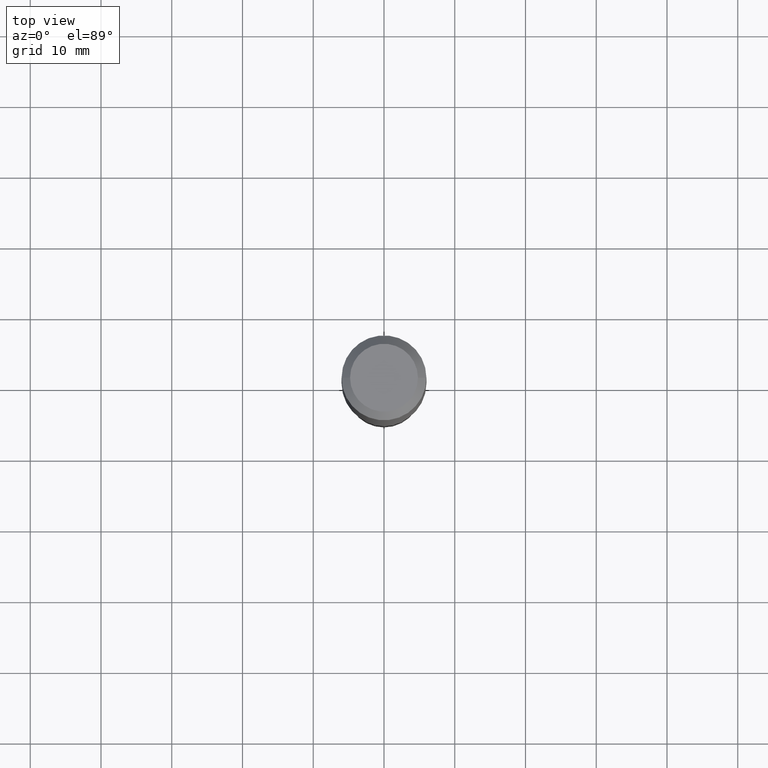
[diagram: clean part render]
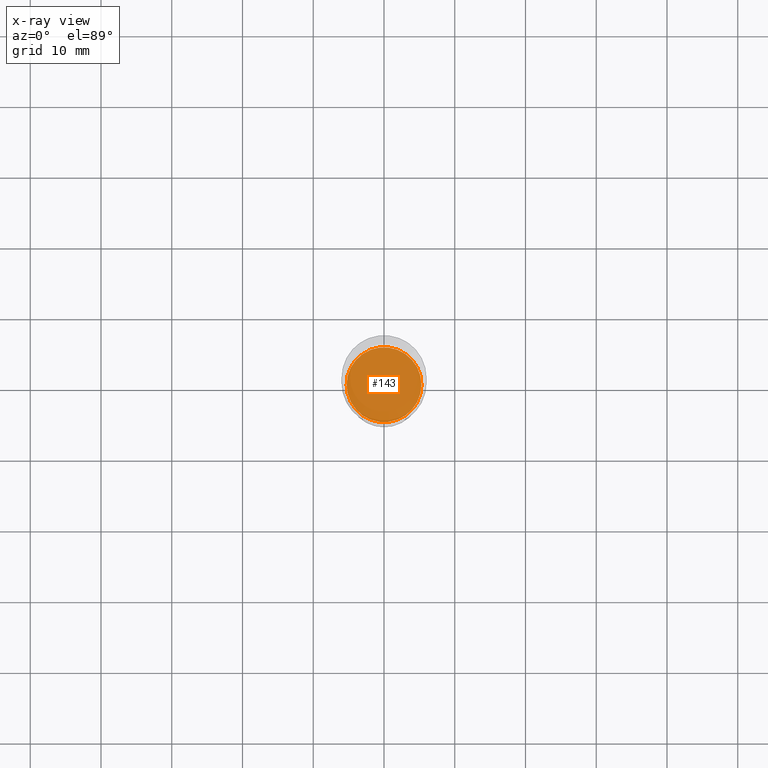
[diagram: x-ray — body ghosted, one internal face saturated and labeled with its STEP entity id]
A machine part, top view, then the same camera in x-ray: the body is ghosted and one INTERNAL B-rep face — a face not visible from any outside direction — is saturated and labeled: STEP entity #143.
In plain terms, the highlighted planar face has unit normal (-0, 0, 1).
Its self-contained STEP definition (entity closure, byte-faithful):
#16 = EDGE_CURVE ( 'NONE', #26, #378, #410, .T. ) ;
#26 = VERTEX_POINT ( 'NONE', #425 ) ;
#33 = CARTESIAN_POINT ( 'NONE',  ( 5.545345064905416332E-29, -7.917283083960716952E-15, -2.267600000000000282 ) ) ;
#73 = DIRECTION ( 'NONE',  ( 1.000000000000000000, -6.982962677686263555E-15, 0.000000000000000000 ) ) ;
#90 = AXIS2_PLACEMENT_3D ( 'NONE', #110, #235, #73 ) ;
#110 = CARTESIAN_POINT ( 'NONE',  ( 5.545345064905416332E-29, -7.917283083960716952E-15, -2.267600000000000282 ) ) ;
#119 = AXIS2_PLACEMENT_3D ( 'NONE', #33, #267, #312 ) ;
#143 = ADVANCED_FACE ( 'NONE', ( #152 ), #144, .F. ) ;
#144 = PLANE ( 'NONE',  #119 ) ;
#152 = FACE_OUTER_BOUND ( 'NONE', #407, .T. ) ;
#157 = CIRCLE ( 'NONE', #388, 0.2081500000000000017 ) ;
#179 = DIRECTION ( 'NONE',  ( -2.445468806185136597E-29, 3.491481338843145583E-15, 1.000000000000000000 ) ) ;
#217 = ORIENTED_EDGE ( 'NONE', *, *, #16, .F. ) ;
#222 = CARTESIAN_POINT ( 'NONE',  ( 5.545345064905416332E-29, -7.917283083960716952E-15, -2.267600000000000282 ) ) ;
#235 = DIRECTION ( 'NONE',  ( -2.445468806185136597E-29, 3.491481338843145583E-15, 1.000000000000000000 ) ) ;
#267 = DIRECTION ( 'NONE',  ( -2.438088387897960049E-29, 3.491481338843145188E-15, 1.000000000000000000 ) ) ;
#297 = ORIENTED_EDGE ( 'NONE', *, *, #355, .F. ) ;
#312 = DIRECTION ( 'NONE',  ( 1.000000000000000000, -6.982962677686265922E-15, 4.876176775795935793E-29 ) ) ;
#355 = EDGE_CURVE ( 'NONE', #378, #26, #157, .T. ) ;
#378 = VERTEX_POINT ( 'NONE', #487 ) ;
#388 = AXIS2_PLACEMENT_3D ( 'NONE', #222, #179, #481 ) ;
#407 = EDGE_LOOP ( 'NONE', ( #217, #297 ) ) ;
#410 = CIRCLE ( 'NONE', #90, 0.2081500000000000017 ) ;
#425 = CARTESIAN_POINT ( 'NONE',  ( 0.2081500000000000017, -9.370786765321112099E-15, -2.267600000000000282 ) ) ;
#481 = DIRECTION ( 'NONE',  ( 1.000000000000000000, -6.982962677686263555E-15, 0.000000000000000000 ) ) ;
#487 = CARTESIAN_POINT ( 'NONE',  ( -0.2081500000000000017, -6.435639152301958385E-15, -2.267600000000000282 ) ) ;